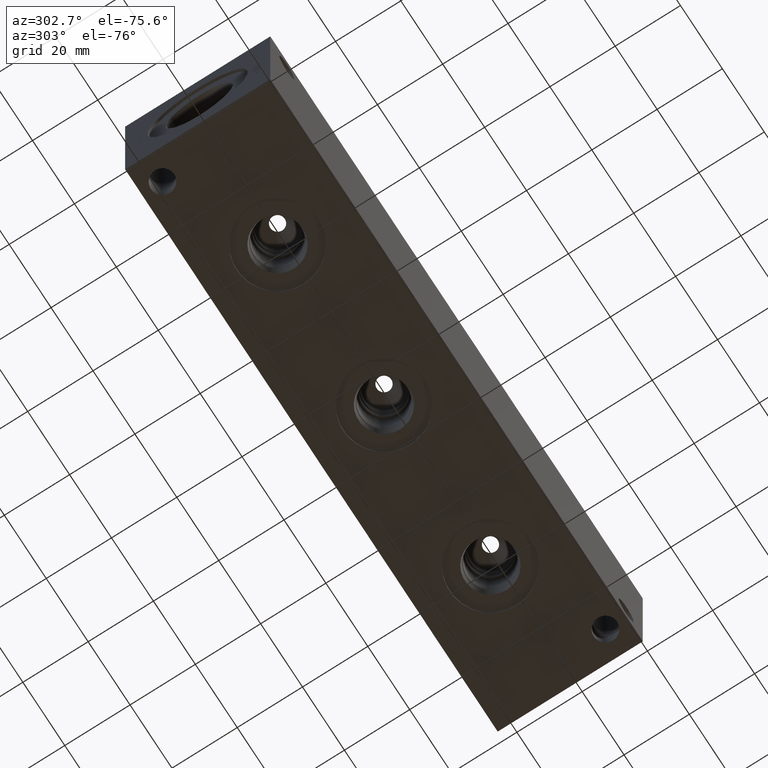
[diagram: clean part render]
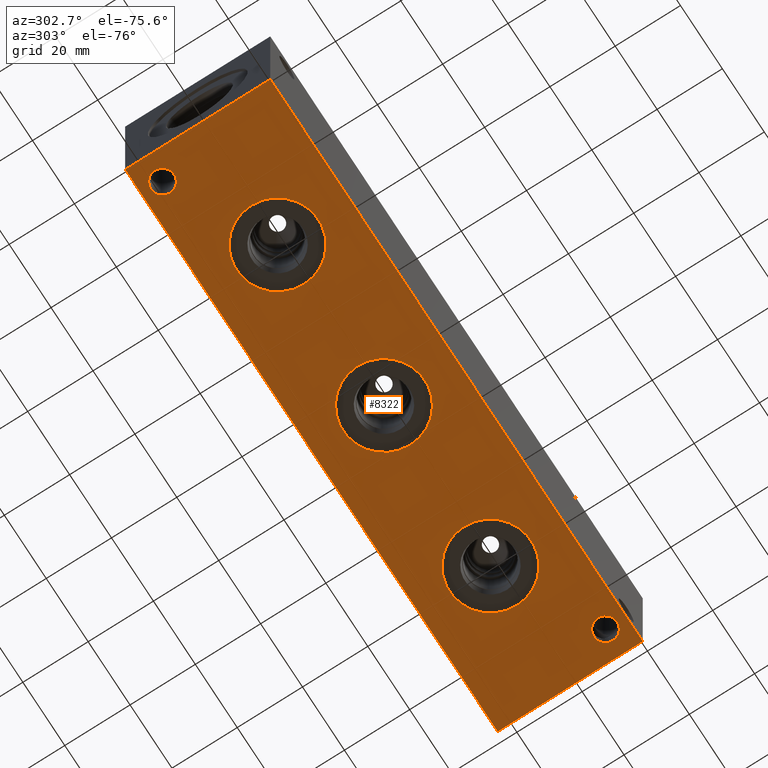
[diagram: same view with one face highlighted and labeled with its STEP entity id]
A machine part, auxiliary view. The second image highlights one B-rep face of the part: STEP entity #8322.
In plain terms, the highlighted planar face has unit normal (0, 0, 1).
Its self-contained STEP definition (entity closure, byte-faithful):
#112=CIRCLE('',#8555,12.5095);
#113=CIRCLE('',#8556,12.5095);
#123=CIRCLE('',#8571,12.5095);
#124=CIRCLE('',#8572,12.5095);
#162=CIRCLE('',#8633,12.5095);
#163=CIRCLE('',#8634,12.5095);
#178=CIRCLE('',#8668,3.5687);
#179=CIRCLE('',#8670,3.5687);
#326=FACE_BOUND('',#1469,.T.);
#327=FACE_BOUND('',#1470,.T.);
#328=FACE_BOUND('',#1471,.T.);
#329=FACE_BOUND('',#1472,.T.);
#330=FACE_BOUND('',#1473,.T.);
#559=PLANE('',#8822);
#986=FACE_OUTER_BOUND('',#1468,.T.);
#1468=EDGE_LOOP('',(#7449,#7450,#7451,#7452));
#1469=EDGE_LOOP('',(#7453,#7454));
#1470=EDGE_LOOP('',(#7455,#7456));
#1471=EDGE_LOOP('',(#7457,#7458));
#1472=EDGE_LOOP('',(#7459));
#1473=EDGE_LOOP('',(#7460));
#2213=LINE('',#14428,#2960);
#2216=LINE('',#14433,#2963);
#2218=LINE('',#14437,#2965);
#2220=LINE('',#14440,#2967);
#2960=VECTOR('',#10526,10.);
#2963=VECTOR('',#10531,10.);
#2965=VECTOR('',#10535,10.);
#2967=VECTOR('',#10539,10.);
#3812=VERTEX_POINT('',#13918);
#3813=VERTEX_POINT('',#13919);
#3823=VERTEX_POINT('',#13949);
#3824=VERTEX_POINT('',#13950);
#3862=VERTEX_POINT('',#14069);
#3863=VERTEX_POINT('',#14070);
#3882=VERTEX_POINT('',#14134);
#3883=VERTEX_POINT('',#14138);
#3977=VERTEX_POINT('',#14426);
#3978=VERTEX_POINT('',#14427);
#3979=VERTEX_POINT('',#14432);
#3980=VERTEX_POINT('',#14436);
#4886=EDGE_CURVE('',#3812,#3813,#112,.T.);
#4887=EDGE_CURVE('',#3813,#3812,#113,.T.);
#4901=EDGE_CURVE('',#3823,#3824,#123,.T.);
#4902=EDGE_CURVE('',#3824,#3823,#124,.T.);
#4959=EDGE_CURVE('',#3862,#3863,#162,.T.);
#4960=EDGE_CURVE('',#3863,#3862,#163,.T.);
#4994=EDGE_CURVE('',#3882,#3882,#178,.T.);
#4996=EDGE_CURVE('',#3883,#3883,#179,.T.);
#5133=EDGE_CURVE('',#3977,#3978,#2213,.T.);
#5136=EDGE_CURVE('',#3979,#3977,#2216,.T.);
#5138=EDGE_CURVE('',#3980,#3979,#2218,.T.);
#5140=EDGE_CURVE('',#3978,#3980,#2220,.T.);
#7449=ORIENTED_EDGE('',*,*,#5140,.F.);
#7450=ORIENTED_EDGE('',*,*,#5133,.F.);
#7451=ORIENTED_EDGE('',*,*,#5136,.F.);
#7452=ORIENTED_EDGE('',*,*,#5138,.F.);
#7453=ORIENTED_EDGE('',*,*,#4886,.T.);
#7454=ORIENTED_EDGE('',*,*,#4887,.T.);
#7455=ORIENTED_EDGE('',*,*,#4901,.T.);
#7456=ORIENTED_EDGE('',*,*,#4902,.T.);
#7457=ORIENTED_EDGE('',*,*,#4959,.T.);
#7458=ORIENTED_EDGE('',*,*,#4960,.T.);
#7459=ORIENTED_EDGE('',*,*,#4994,.T.);
#7460=ORIENTED_EDGE('',*,*,#4996,.T.);
#8322=ADVANCED_FACE('',(#986,#326,#327,#328,#329,#330),#559,.F.);
#8555=AXIS2_PLACEMENT_3D('',#13920,#9920,#9921);
#8556=AXIS2_PLACEMENT_3D('',#13921,#9922,#9923);
#8571=AXIS2_PLACEMENT_3D('',#13951,#9956,#9957);
#8572=AXIS2_PLACEMENT_3D('',#13952,#9958,#9959);
#8633=AXIS2_PLACEMENT_3D('',#14071,#10099,#10100);
#8634=AXIS2_PLACEMENT_3D('',#14072,#10101,#10102);
#8668=AXIS2_PLACEMENT_3D('',#14136,#10180,#10181);
#8670=AXIS2_PLACEMENT_3D('',#14140,#10185,#10186);
#8822=AXIS2_PLACEMENT_3D('',#14442,#10542,#10543);
#9920=DIRECTION('center_axis',(0.,0.,1.));
#9921=DIRECTION('ref_axis',(1.,0.,0.));
#9922=DIRECTION('center_axis',(0.,0.,1.));
#9923=DIRECTION('ref_axis',(1.,0.,0.));
#9956=DIRECTION('center_axis',(0.,0.,1.));
#9957=DIRECTION('ref_axis',(1.,0.,0.));
#9958=DIRECTION('center_axis',(0.,0.,1.));
#9959=DIRECTION('ref_axis',(1.,0.,0.));
#10099=DIRECTION('center_axis',(0.,0.,1.));
#10100=DIRECTION('ref_axis',(1.,0.,0.));
#10101=DIRECTION('center_axis',(0.,0.,1.));
#10102=DIRECTION('ref_axis',(1.,0.,0.));
#10180=DIRECTION('center_axis',(0.,0.,1.));
#10181=DIRECTION('ref_axis',(1.,0.,0.));
#10185=DIRECTION('center_axis',(0.,0.,1.));
#10186=DIRECTION('ref_axis',(1.,0.,0.));
#10526=DIRECTION('',(0.,-1.,0.));
#10531=DIRECTION('',(-1.,0.,0.));
#10535=DIRECTION('',(0.,1.,0.));
#10539=DIRECTION('',(1.,0.,0.));
#10542=DIRECTION('center_axis',(0.,0.,1.));
#10543=DIRECTION('ref_axis',(1.,0.,0.));
#13918=CARTESIAN_POINT('',(152.2095,22.225,0.));
#13919=CARTESIAN_POINT('',(127.1905,22.225,0.));
#13920=CARTESIAN_POINT('Origin',(139.7,22.225,0.));
#13921=CARTESIAN_POINT('Origin',(139.7,22.225,0.));
#13949=CARTESIAN_POINT('',(101.4095,22.225,0.));
#13950=CARTESIAN_POINT('',(76.3905,22.225,0.));
#13951=CARTESIAN_POINT('Origin',(88.9,22.225,0.));
#13952=CARTESIAN_POINT('Origin',(88.9,22.225,0.));
#14069=CARTESIAN_POINT('',(50.6095,22.225,0.));
#14070=CARTESIAN_POINT('',(25.5905,22.225,0.));
#14071=CARTESIAN_POINT('Origin',(38.1,22.225,0.));
#14072=CARTESIAN_POINT('Origin',(38.1,22.225,0.));
#14134=CARTESIAN_POINT('',(4.3561,38.1,0.));
#14136=CARTESIAN_POINT('Origin',(7.9248,38.1,0.));
#14138=CARTESIAN_POINT('',(166.3065,6.35,0.));
#14140=CARTESIAN_POINT('Origin',(169.8752,6.35,0.));
#14426=CARTESIAN_POINT('',(0.,44.45,0.));
#14427=CARTESIAN_POINT('',(0.,0.,0.));
#14428=CARTESIAN_POINT('',(0.,44.45,0.));
#14432=CARTESIAN_POINT('',(177.8,44.45,0.));
#14433=CARTESIAN_POINT('',(177.8,44.45,0.));
#14436=CARTESIAN_POINT('',(177.8,0.,0.));
#14437=CARTESIAN_POINT('',(177.8,0.,0.));
#14440=CARTESIAN_POINT('',(0.,0.,0.));
#14442=CARTESIAN_POINT('Origin',(88.9,22.225,0.));